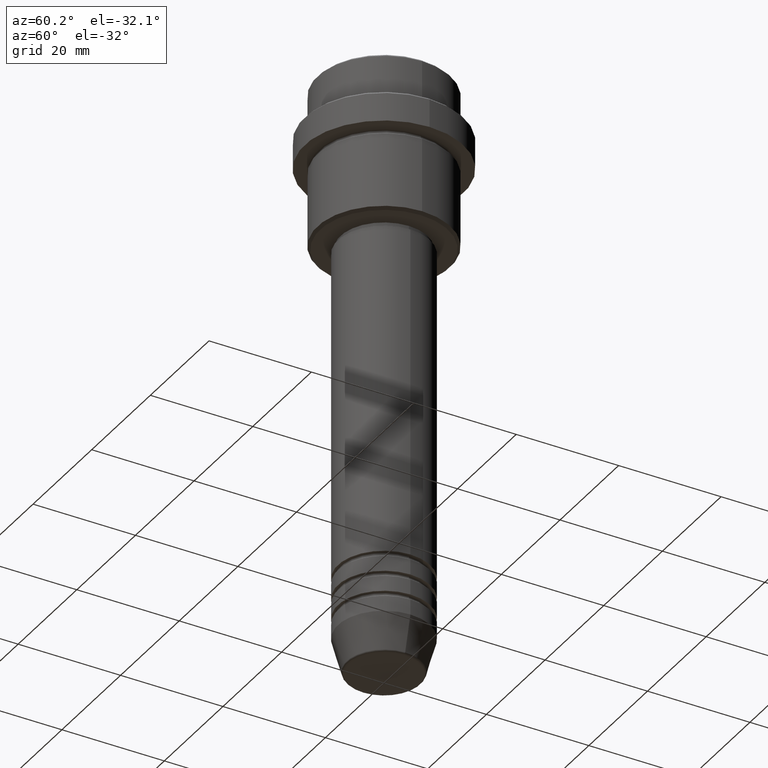
[diagram: clean part render]
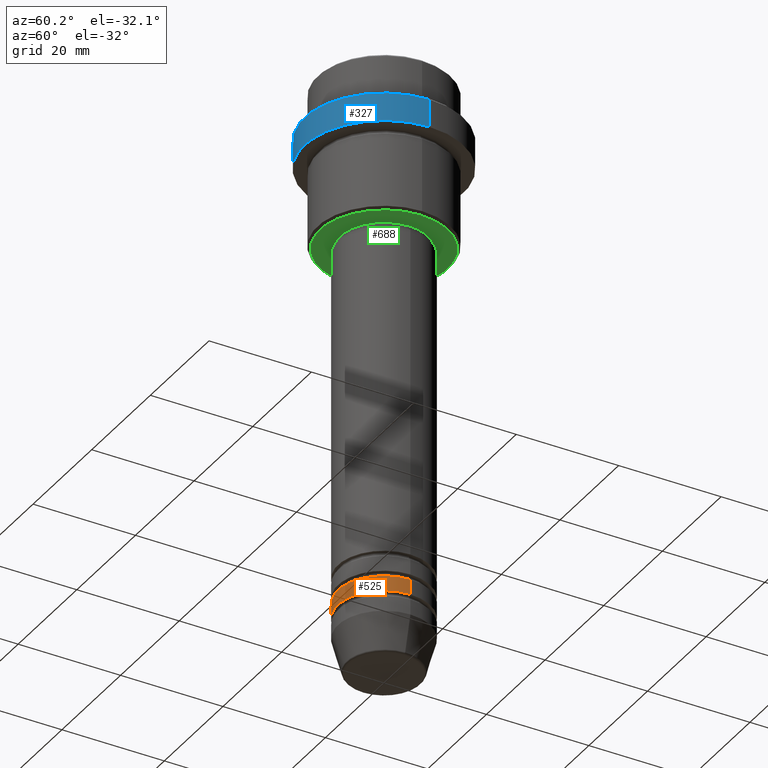
[diagram: same view with three faces highlighted in distinct colors, each labeled with its STEP entity id]
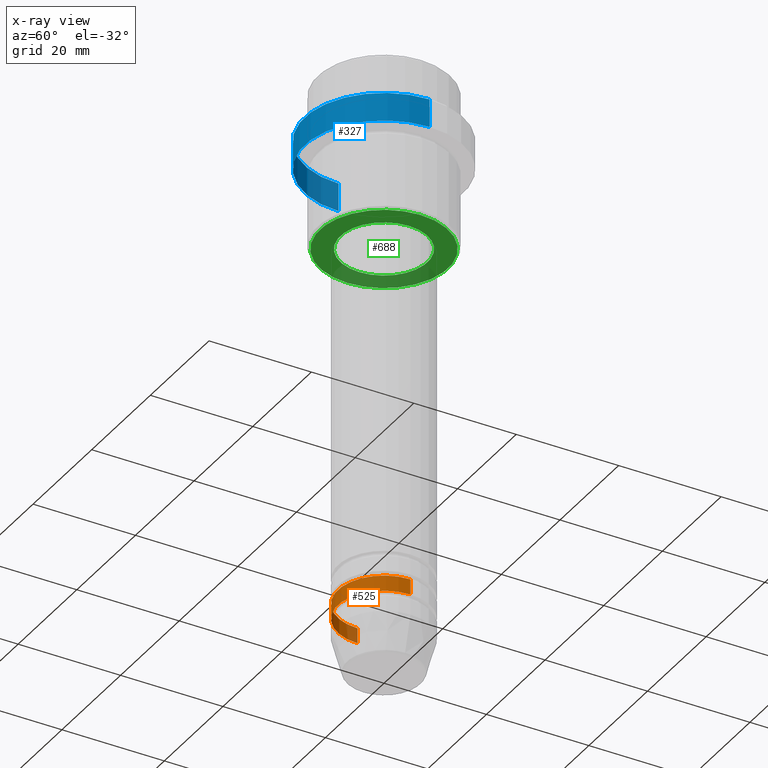
[diagram: x-ray of the same camera — body ghosted, the three highlighted faces saturated]
A machine part, auxiliary view with three faces highlighted in distinct colors.
The next image is the same camera in x-ray (body ghosted, the three faces saturated) — at least one of them is partly hidden behind the body in this view.
Their STEP definitions:

[orange] entity #525 — the highlighted cylindrical surface (partial cylindrical patch) has radius 9 mm, axis along (-0, -0, 1).
#22 = LINE ( 'NONE', #256, #168 ) ;
#64 = DIRECTION ( 'NONE',  ( 1.000000000000000000, 0.000000000000000000, 0.000000000000000000 ) ) ;
#168 = VECTOR ( 'NONE', #1107, 1000.000000000000000 ) ;
#184 = LINE ( 'NONE', #393, #1272 ) ;
#185 = EDGE_CURVE ( 'NONE', #577, #1187, #22, .T. ) ;
#256 = CARTESIAN_POINT ( 'NONE',  ( 9.000000000000000000, 0.000000000000000000, 0.000000000000000000 ) ) ;
#348 = CIRCLE ( 'NONE', #746, 9.000000000000000000 ) ;
#360 = CARTESIAN_POINT ( 'NONE',  ( -9.000000000000000000, 1.102182119232617714E-15, -104.9999999999999005 ) ) ;
#361 = DIRECTION ( 'NONE',  ( -0.000000000000000000, -0.000000000000000000, 1.000000000000000000 ) ) ;
#378 = CARTESIAN_POINT ( 'NONE',  ( 0.000000000000000000, 0.000000000000000000, 0.000000000000000000 ) ) ;
#393 = CARTESIAN_POINT ( 'NONE',  ( -9.000000000000000000, 1.102182119232617714E-15, 0.000000000000000000 ) ) ;
#404 = VERTEX_POINT ( 'NONE', #425 ) ;
#408 = ORIENTED_EDGE ( 'NONE', *, *, #1298, .F. ) ;
#410 = DIRECTION ( 'NONE',  ( -0.000000000000000000, -0.000000000000000000, 1.000000000000000000 ) ) ;
#412 = DIRECTION ( 'NONE',  ( 1.000000000000000000, 0.000000000000000000, 0.000000000000000000 ) ) ;
#425 = CARTESIAN_POINT ( 'NONE',  ( -9.000000000000000000, 1.102182119232617714E-15, -101.9999999999999005 ) ) ;
#475 = CYLINDRICAL_SURFACE ( 'NONE', #790, 9.000000000000000000 ) ;
#511 = DIRECTION ( 'NONE',  ( -0.000000000000000000, -0.000000000000000000, 1.000000000000000000 ) ) ;
#525 = ADVANCED_FACE ( 'NONE', ( #1356 ), #475, .T. ) ;
#568 = EDGE_LOOP ( 'NONE', ( #1278, #588, #822, #408 ) ) ;
#575 = CARTESIAN_POINT ( 'NONE',  ( 9.000000000000000000, 0.000000000000000000, -104.9999999999999005 ) ) ;
#577 = VERTEX_POINT ( 'NONE', #575 ) ;
#588 = ORIENTED_EDGE ( 'NONE', *, *, #1197, .T. ) ;
#606 = AXIS2_PLACEMENT_3D ( 'NONE', #757, #1373, #412 ) ;
#716 = DIRECTION ( 'NONE',  ( 1.000000000000000000, 0.000000000000000000, 0.000000000000000000 ) ) ;
#717 = EDGE_CURVE ( 'NONE', #1004, #404, #184, .T. ) ;
#746 = AXIS2_PLACEMENT_3D ( 'NONE', #1052, #511, #64 ) ;
#757 = CARTESIAN_POINT ( 'NONE',  ( 0.000000000000000000, 0.000000000000000000, -101.9999999999999005 ) ) ;
#790 = AXIS2_PLACEMENT_3D ( 'NONE', #378, #361, #716 ) ;
#822 = ORIENTED_EDGE ( 'NONE', *, *, #185, .T. ) ;
#1004 = VERTEX_POINT ( 'NONE', #360 ) ;
#1052 = CARTESIAN_POINT ( 'NONE',  ( 0.000000000000000000, 0.000000000000000000, -104.9999999999999005 ) ) ;
#1107 = DIRECTION ( 'NONE',  ( -0.000000000000000000, -0.000000000000000000, 1.000000000000000000 ) ) ;
#1187 = VERTEX_POINT ( 'NONE', #1378 ) ;
#1197 = EDGE_CURVE ( 'NONE', #1004, #577, #348, .T. ) ;
#1262 = CIRCLE ( 'NONE', #606, 9.000000000000000000 ) ;
#1272 = VECTOR ( 'NONE', #410, 1000.000000000000000 ) ;
#1278 = ORIENTED_EDGE ( 'NONE', *, *, #717, .F. ) ;
#1298 = EDGE_CURVE ( 'NONE', #404, #1187, #1262, .T. ) ;
#1356 = FACE_OUTER_BOUND ( 'NONE', #568, .T. ) ;
#1373 = DIRECTION ( 'NONE',  ( -0.000000000000000000, -0.000000000000000000, 1.000000000000000000 ) ) ;
#1378 = CARTESIAN_POINT ( 'NONE',  ( 9.000000000000000000, 0.000000000000000000, -101.9999999999999005 ) ) ;

[blue] entity #327 — the highlighted cylindrical surface (partial cylindrical patch) has radius 15.5 mm, axis along (-0, -0, 1).
#32 = AXIS2_PLACEMENT_3D ( 'NONE', #42, #808, #710 ) ;
#42 = CARTESIAN_POINT ( 'NONE',  ( 0.000000000000000000, 0.000000000000000000, -15.00000000000000000 ) ) ;
#51 = VERTEX_POINT ( 'NONE', #911 ) ;
#281 = DIRECTION ( 'NONE',  ( 1.000000000000000000, 0.000000000000000000, 0.000000000000000000 ) ) ;
#327 = ADVANCED_FACE ( 'NONE', ( #995 ), #431, .T. ) ;
#395 = DIRECTION ( 'NONE',  ( -0.000000000000000000, -0.000000000000000000, 1.000000000000000000 ) ) ;
#401 = CARTESIAN_POINT ( 'NONE',  ( 15.50000000000000000, 0.000000000000000000, -9.499999999999984013 ) ) ;
#403 = CIRCLE ( 'NONE', #32, 15.50000000000000000 ) ;
#431 = CYLINDRICAL_SURFACE ( 'NONE', #729, 15.50000000000000000 ) ;
#436 = CARTESIAN_POINT ( 'NONE',  ( 0.000000000000000000, 0.000000000000000000, 0.000000000000000000 ) ) ;
#445 = EDGE_CURVE ( 'NONE', #980, #51, #649, .T. ) ;
#543 = EDGE_LOOP ( 'NONE', ( #892, #934, #617, #1192 ) ) ;
#553 = EDGE_CURVE ( 'NONE', #980, #1234, #403, .T. ) ;
#617 = ORIENTED_EDGE ( 'NONE', *, *, #1306, .T. ) ;
#623 = LINE ( 'NONE', #734, #1304 ) ;
#649 = LINE ( 'NONE', #972, #1124 ) ;
#710 = DIRECTION ( 'NONE',  ( 1.000000000000000000, 0.000000000000000000, 0.000000000000000000 ) ) ;
#729 = AXIS2_PLACEMENT_3D ( 'NONE', #436, #780, #879 ) ;
#734 = CARTESIAN_POINT ( 'NONE',  ( 15.50000000000000000, 0.000000000000000000, 0.000000000000000000 ) ) ;
#736 = EDGE_CURVE ( 'NONE', #1203, #51, #952, .T. ) ;
#761 = CARTESIAN_POINT ( 'NONE',  ( -15.50000000000000000, 1.898202538678397557E-15, -15.00000000000000000 ) ) ;
#780 = DIRECTION ( 'NONE',  ( -0.000000000000000000, -0.000000000000000000, 1.000000000000000000 ) ) ;
#808 = DIRECTION ( 'NONE',  ( -0.000000000000000000, -0.000000000000000000, 1.000000000000000000 ) ) ;
#831 = CARTESIAN_POINT ( 'NONE',  ( 15.50000000000000000, 0.000000000000000000, -15.00000000000000000 ) ) ;
#847 = CARTESIAN_POINT ( 'NONE',  ( 0.000000000000000000, 0.000000000000000000, -9.499999999999984013 ) ) ;
#879 = DIRECTION ( 'NONE',  ( 1.000000000000000000, 0.000000000000000000, 0.000000000000000000 ) ) ;
#892 = ORIENTED_EDGE ( 'NONE', *, *, #445, .F. ) ;
#911 = CARTESIAN_POINT ( 'NONE',  ( -15.50000000000000000, 1.898202538678397557E-15, -9.499999999999984013 ) ) ;
#934 = ORIENTED_EDGE ( 'NONE', *, *, #553, .T. ) ;
#938 = DIRECTION ( 'NONE',  ( 0.000000000000000000, 0.000000000000000000, -1.000000000000000000 ) ) ;
#952 = CIRCLE ( 'NONE', #1359, 15.50000000000000000 ) ;
#972 = CARTESIAN_POINT ( 'NONE',  ( -15.50000000000000000, 1.898202538678397557E-15, 0.000000000000000000 ) ) ;
#980 = VERTEX_POINT ( 'NONE', #761 ) ;
#995 = FACE_OUTER_BOUND ( 'NONE', #543, .T. ) ;
#1077 = DIRECTION ( 'NONE',  ( -0.000000000000000000, -0.000000000000000000, 1.000000000000000000 ) ) ;
#1124 = VECTOR ( 'NONE', #1077, 1000.000000000000000 ) ;
#1192 = ORIENTED_EDGE ( 'NONE', *, *, #736, .T. ) ;
#1203 = VERTEX_POINT ( 'NONE', #401 ) ;
#1234 = VERTEX_POINT ( 'NONE', #831 ) ;
#1304 = VECTOR ( 'NONE', #395, 1000.000000000000000 ) ;
#1306 = EDGE_CURVE ( 'NONE', #1234, #1203, #623, .T. ) ;
#1359 = AXIS2_PLACEMENT_3D ( 'NONE', #847, #938, #281 ) ;

[green] entity #688 — the highlighted planar face has unit normal (0, 0, -1).
#28 = CIRCLE ( 'NONE', #838, 8.499999999999994671 ) ;
#37 = EDGE_CURVE ( 'NONE', #1271, #1034, #28, .T. ) ;
#71 = FACE_OUTER_BOUND ( 'NONE', #172, .T. ) ;
#86 = DIRECTION ( 'NONE',  ( -1.000000000000000000, 0.000000000000000000, -0.000000000000000000 ) ) ;
#132 = DIRECTION ( 'NONE',  ( 0.000000000000000000, 0.000000000000000000, -1.000000000000000000 ) ) ;
#134 = CARTESIAN_POINT ( 'NONE',  ( 0.000000000000000000, 0.000000000000000000, -30.99999999999999289 ) ) ;
#151 = DIRECTION ( 'NONE',  ( -0.000000000000000000, -0.000000000000000000, 1.000000000000000000 ) ) ;
#152 = EDGE_CURVE ( 'NONE', #1034, #1271, #949, .T. ) ;
#172 = EDGE_LOOP ( 'NONE', ( #1224, #1132 ) ) ;
#212 = CARTESIAN_POINT ( 'NONE',  ( 12.49999999999999645, 0.000000000000000000, -30.99999999999999645 ) ) ;
#219 = CIRCLE ( 'NONE', #1036, 12.49999999999999645 ) ;
#232 = EDGE_LOOP ( 'NONE', ( #472, #1096 ) ) ;
#260 = AXIS2_PLACEMENT_3D ( 'NONE', #280, #1064, #946 ) ;
#268 = CARTESIAN_POINT ( 'NONE',  ( 0.000000000000000000, 0.000000000000000000, -30.99999999999999645 ) ) ;
#273 = CARTESIAN_POINT ( 'NONE',  ( 0.000000000000000000, 0.000000000000000000, -30.99999999999999289 ) ) ;
#280 = CARTESIAN_POINT ( 'NONE',  ( 0.000000000000000000, 0.000000000000000000, -30.99999999999999645 ) ) ;
#291 = DIRECTION ( 'NONE',  ( 0.000000000000000000, 0.000000000000000000, -1.000000000000000000 ) ) ;
#472 = ORIENTED_EDGE ( 'NONE', *, *, #152, .T. ) ;
#482 = DIRECTION ( 'NONE',  ( 1.000000000000000000, 0.000000000000000000, 0.000000000000000000 ) ) ;
#530 = VERTEX_POINT ( 'NONE', #997 ) ;
#566 = EDGE_CURVE ( 'NONE', #856, #530, #219, .T. ) ;
#659 = AXIS2_PLACEMENT_3D ( 'NONE', #1046, #291, #86 ) ;
#688 = ADVANCED_FACE ( 'NONE', ( #71, #1040 ), #932, .T. ) ;
#714 = DIRECTION ( 'NONE',  ( -0.000000000000000000, -0.000000000000000000, 1.000000000000000000 ) ) ;
#721 = DIRECTION ( 'NONE',  ( 1.000000000000000000, 0.000000000000000000, 0.000000000000000000 ) ) ;
#795 = DIRECTION ( 'NONE',  ( -1.000000000000000000, 0.000000000000000000, 0.000000000000000000 ) ) ;
#838 = AXIS2_PLACEMENT_3D ( 'NONE', #134, #151, #482 ) ;
#856 = VERTEX_POINT ( 'NONE', #212 ) ;
#921 = CARTESIAN_POINT ( 'NONE',  ( 8.499999999999994671, 0.000000000000000000, -30.99999999999999289 ) ) ;
#932 = PLANE ( 'NONE',  #659 ) ;
#946 = DIRECTION ( 'NONE',  ( -1.000000000000000000, 0.000000000000000000, 0.000000000000000000 ) ) ;
#949 = CIRCLE ( 'NONE', #1402, 8.499999999999994671 ) ;
#997 = CARTESIAN_POINT ( 'NONE',  ( -12.49999999999999645, 1.561424668912875111E-15, -30.99999999999999645 ) ) ;
#1034 = VERTEX_POINT ( 'NONE', #921 ) ;
#1036 = AXIS2_PLACEMENT_3D ( 'NONE', #268, #132, #795 ) ;
#1040 = FACE_BOUND ( 'NONE', #232, .T. ) ;
#1046 = CARTESIAN_POINT ( 'NONE',  ( 0.000000000000000000, 13.00000000000000000, -30.99999999999999645 ) ) ;
#1064 = DIRECTION ( 'NONE',  ( 0.000000000000000000, 0.000000000000000000, -1.000000000000000000 ) ) ;
#1096 = ORIENTED_EDGE ( 'NONE', *, *, #37, .T. ) ;
#1132 = ORIENTED_EDGE ( 'NONE', *, *, #1242, .T. ) ;
#1143 = CIRCLE ( 'NONE', #260, 12.49999999999999645 ) ;
#1181 = CARTESIAN_POINT ( 'NONE',  ( -8.499999999999994671, 1.040949779275249745E-15, -30.99999999999999289 ) ) ;
#1224 = ORIENTED_EDGE ( 'NONE', *, *, #566, .T. ) ;
#1242 = EDGE_CURVE ( 'NONE', #530, #856, #1143, .T. ) ;
#1271 = VERTEX_POINT ( 'NONE', #1181 ) ;
#1402 = AXIS2_PLACEMENT_3D ( 'NONE', #273, #714, #721 ) ;